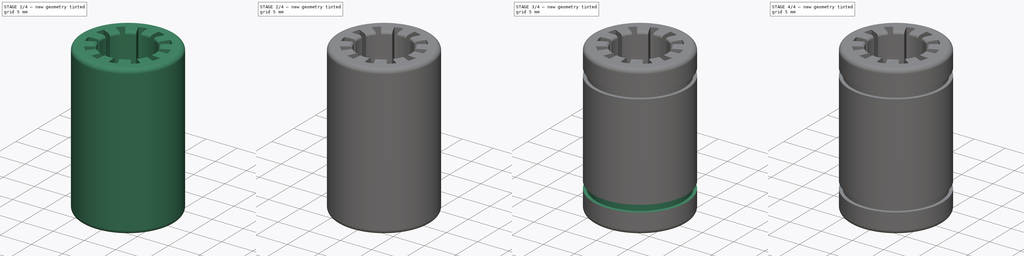
[diagram: build sequence overview — one tinted view per stage of 4, left to right]
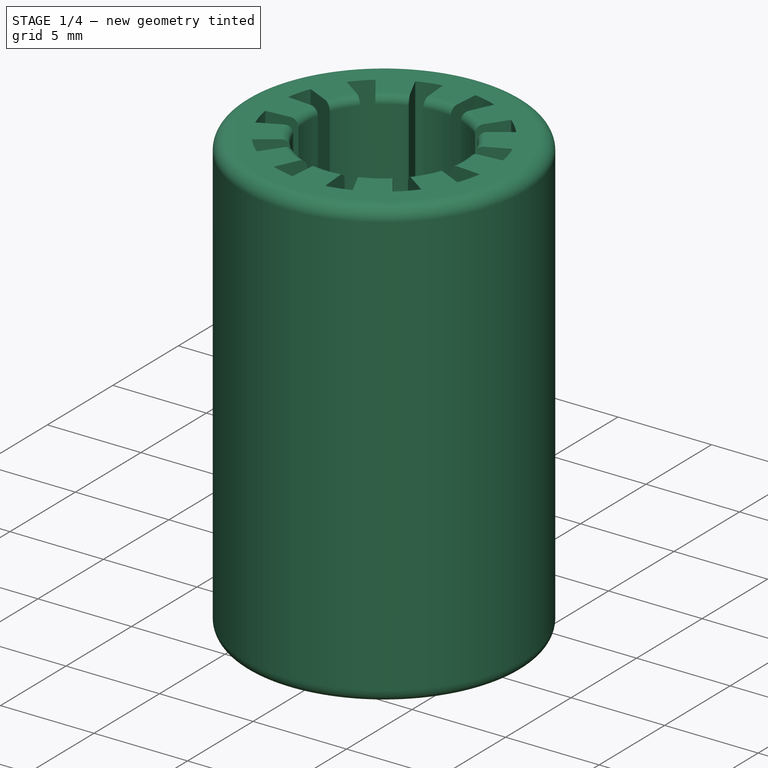
[diagram: stage 1 of 4 — iso view after this stage's code; geometry added in this stage tinted green]
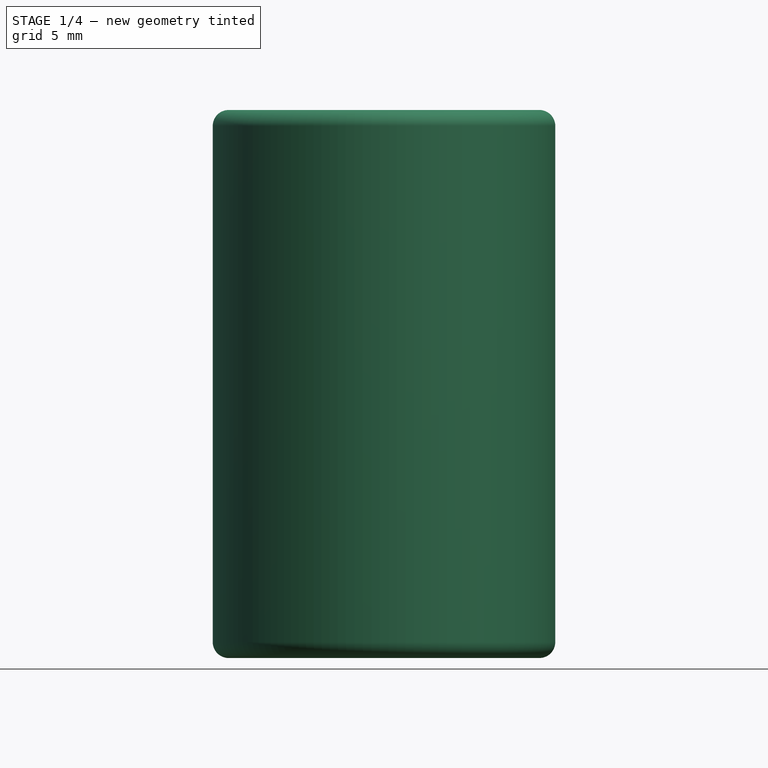
[diagram: stage 1 of 4 — front view after this stage's code; geometry added in this stage tinted green]
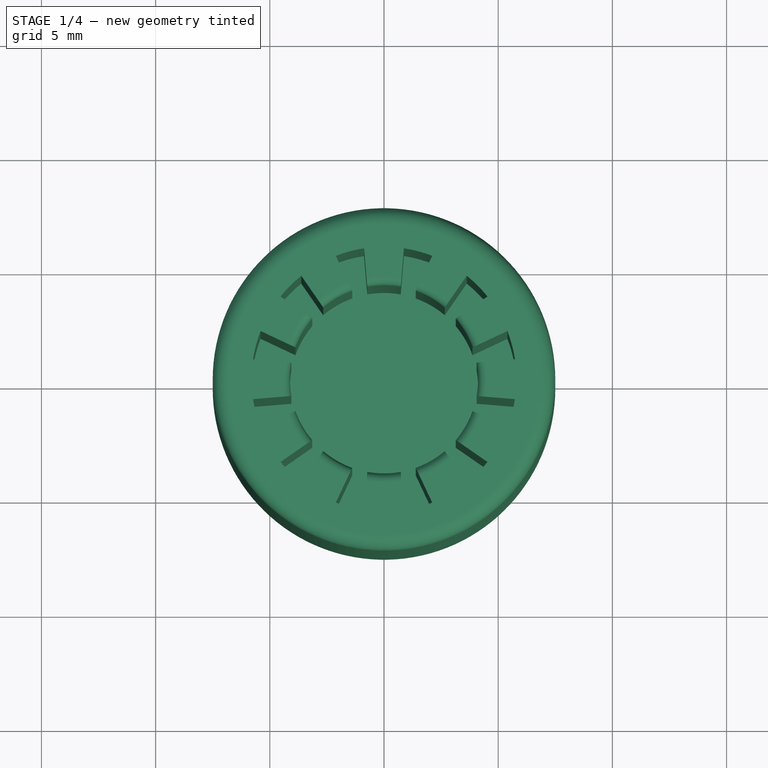
[diagram: stage 1 of 4 — top view after this stage's code; geometry added in this stage tinted green]
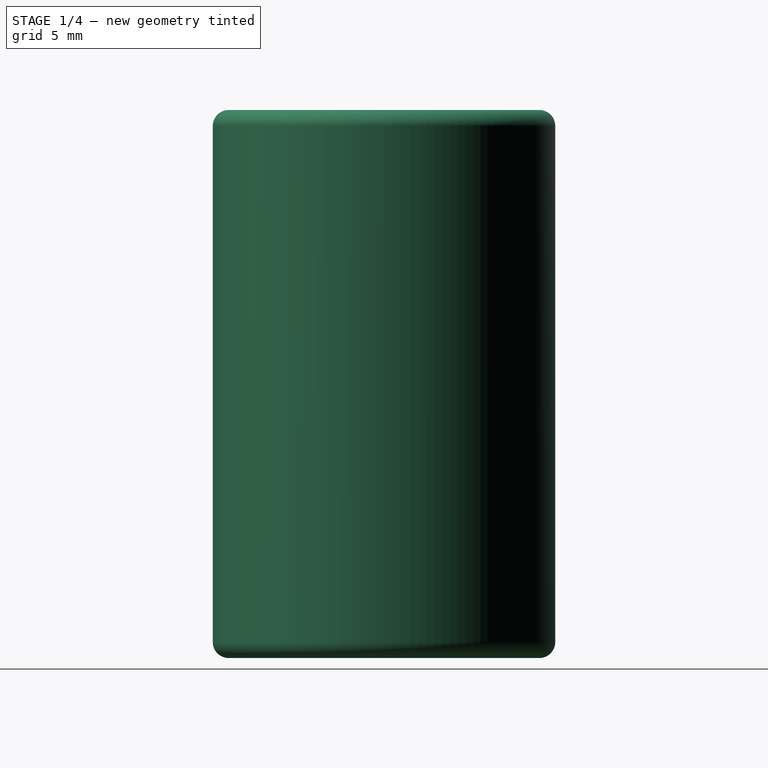
[diagram: stage 1 of 4 — right view after this stage's code; geometry added in this stage tinted green]
FCSTD DOCUMENT  (FreeCAD 0.16R6712 (Git))
Label: SleeveBearing_V2
License: All rights reserved
LicenseURL: http://en.wikipedia.org/wiki/All_rights_reserved
objects: PartDesign::Fillet×4, Part::Cut×3, Sketcher::SketchObject×2, PartDesign::Pad×2, Part::Cylinder×2, Part::FeaturePython×2, App::DocumentObjectGroup×2, Spreadsheet::Sheet×1, Part::MultiFuse×1
note: 18 computed .brp shape members not serialized (recipe doc carries the construction recipe); baked Part::Feature solids carry a one-line shape summary decoded from their .brp

FEATURE [Part::Cylinder] Cylinder001
  Angle = 360
  Height = 1.1
  Placement = pos=(0,0,3.25) rot=(0,0,1;0rad)
  Radius = 7
  expr: Placement.Base.z = Dimensions.GrooveOffset
  expr: Height = Dimensions.GrooveHeight
  expr: Radius = Dimensions.OuterRadius - Dimensions.GrooveDepth
FEATURE [Sketcher::SketchObject] Sketch001
  expr: Constraints[289] = Dimensions.ContactGrooveAngle
  expr: Constraints[288] = Dimensions.ContactGrooveAngle
  expr: Constraints[286] = Dimensions.ContactGrooveAngle
  expr: Constraints[284] = Dimensions.ContactGrooveAngle
  expr: Constraints[287] = Dimensions.ContactGrooveAngle
  expr: Constraints[285] = Dimensions.ContactGrooveAngle
  expr: Constraints[282] = Dimensions.ContactGrooveAngle
  expr: Constraints[283] = Dimensions.ContactGrooveAngle
  expr: Constraints[279] = Dimensions.ContactGrooveAngle
  expr: Constraints[278] = Dimensions.ContactGrooveAngle
  expr: Constraints[280] = Dimensions.ContactGrooveAngle
  expr: Constraints[197] = Dimensions.OuterRadius - 1.7
  expr: Constraints[77] = Dimensions.ContactAngle
  expr: Constraints[281] = Dimensions.ContactGrooveAngle
  expr: Constraints[0] = Dimensions.OuterRadius
  expr: Constraints[81] = Dimensions.InnerRadius
  sketch-geometry (109):
    g0: Circle CenterX=0 CenterY=0 CenterZ=0 NormalX=0 NormalY=0 NormalZ=1 Radius=7.5
    g1: LineSegment [constr] StartX=-1.33458 StartY=7.38031 StartZ=0 EndX=1.33458 EndY=7.38031 EndZ=0
    g2: LineSegment [constr] StartX=1.33458 StartY=7.38031 StartZ=0 EndX=2.53438 EndY=7.05882 EndZ=0
    g3: LineSegment [constr] StartX=2.53438 StartY=7.05882 StartZ=0 EndX=4.84593 EndY=5.72424 EndZ=0
    g4: LineSegment [constr] StartX=4.84593 StartY=5.72424 StartZ=0 EndX=5.72424 EndY=4.84593 EndZ=0
    g5: LineSegment [constr] StartX=5.72424 StartY=4.84593 StartZ=0 EndX=7.05882 EndY=2.53438 EndZ=0
    g6: LineSegment [constr] StartX=7.05882 StartY=2.53438 StartZ=0 EndX=7.38031 EndY=1.33458 EndZ=0
    g7: LineSegment [constr] StartX=7.38031 StartY=1.33458 StartZ=0 EndX=7.38031 EndY=-1.33458 EndZ=0
    g8: LineSegment [constr] StartX=7.38031 StartY=-1.33458 StartZ=0 EndX=7.05882 EndY=-2.53438 EndZ=0
    g9: LineSegment [constr] StartX=7.05882 StartY=-2.53438 StartZ=0 EndX=5.72424 EndY=-4.84593 EndZ=0
    g10: LineSegment [constr] StartX=5.72424 StartY=-4.84593 StartZ=0 EndX=4.84593 EndY=-5.72424 EndZ=0
    g11: LineSegment [constr] StartX=4.84593 StartY=-5.72424 StartZ=0 EndX=2.53438 EndY=-7.05882 EndZ=0
    g12: LineSegment [constr] StartX=2.53438 StartY=-7.05882 StartZ=0 EndX=1.33458 EndY=-7.38031 EndZ=0
    g13: LineSegment [constr] StartX=1.33458 StartY=-7.38031 StartZ=0 EndX=-1.33458 EndY=-7.38031 EndZ=0
    g14: LineSegment [constr] StartX=-1.33458 StartY=-7.38031 StartZ=0 EndX=-2.53438 EndY=-7.05882 EndZ=0
    g15: LineSegment [constr] StartX=-2.53438 StartY=-7.05882 StartZ=0 EndX=-4.84593 EndY=-5.72424 EndZ=0
    g16: LineSegment [constr] StartX=-4.84593 StartY=-5.72424 StartZ=0 EndX=-5.72424 EndY=-4.84593 EndZ=0
    g17: LineSegment [constr] StartX=-5.72424 StartY=-4.84593 StartZ=0 EndX=-7.05882 EndY=-2.53438 EndZ=0
    g18: LineSegment [constr] StartX=-7.05882 StartY=-2.53438 StartZ=0 EndX=-7.38031 EndY=-1.33458 EndZ=0
    g19: LineSegment [constr] StartX=-7.38031 StartY=-1.33458 StartZ=0 EndX=-7.38031 EndY=1.33458 EndZ=0
    g20: LineSegment [constr] StartX=-7.38031 StartY=1.33458 StartZ=0 EndX=-7.05882 EndY=2.53438 EndZ=0
    g21: LineSegment [constr] StartX=-7.05882 StartY=2.53438 StartZ=0 EndX=-5.72424 EndY=4.84593 EndZ=0
    g22: LineSegment [constr] StartX=-5.72424 StartY=4.84593 StartZ=0 EndX=-4.84593 EndY=5.72424 EndZ=0
    g23: LineSegment [constr] StartX=-4.84593 StartY=5.72424 StartZ=0 EndX=-2.53438 EndY=7.05882 EndZ=0
    g24: LineSegment [constr] StartX=-2.53438 StartY=7.05882 StartZ=0 EndX=-1.33458 EndY=7.38031 EndZ=0
    g25: LineSegment [constr] StartX=0 StartY=0 StartZ=0 EndX=-1.33458 EndY=7.38031 EndZ=0
    g26: LineSegment [constr] StartX=0 StartY=0 StartZ=0 EndX=1.33458 EndY=7.38031 EndZ=0
    g27: ArcOfCircle CenterX=0 CenterY=0 CenterZ=0 NormalX=0 NormalY=0 NormalZ=1 Radius=4.12 StartAngle=1.3919 EndAngle=1.74969
    g28: LineSegment [constr] StartX=0 StartY=0 StartZ=0 EndX=2.53438 EndY=7.05882 EndZ=0
    g29: LineSegment [constr] StartX=0 StartY=0 StartZ=0 EndX=4.84593 EndY=5.72424 EndZ=0
    g30: LineSegment [constr] StartX=0 StartY=0 StartZ=0 EndX=5.72424 EndY=4.84593 EndZ=0
    g31: LineSegment [constr] StartX=0 StartY=0 StartZ=0 EndX=-2.53438 EndY=7.05882 EndZ=0
    g32: LineSegment [constr] StartX=0 StartY=0 StartZ=0 EndX=-4.84593 EndY=5.72424 EndZ=0
    g33: LineSegment [constr] StartX=0 StartY=0 StartZ=0 EndX=-5.72424 EndY=4.84593 EndZ=0
    g34: LineSegment [constr] StartX=0 StartY=0 StartZ=0 EndX=-7.05882 EndY=2.53438 EndZ=0
    g35: LineSegment [constr] StartX=0 StartY=0 StartZ=0 EndX=-7.38031 EndY=1.33458 EndZ=0
    g36: LineSegment [constr] StartX=0 StartY=0 StartZ=0 EndX=7.05882 EndY=2.53438 EndZ=0
    g37: LineSegment [constr] StartX=0 StartY=0 StartZ=0 EndX=7.38031 EndY=1.33458 EndZ=0
    g38: LineSegment [constr] StartX=0 StartY=0 StartZ=0 EndX=7.38031 EndY=-1.33458 EndZ=0
    g39: LineSegment [constr] StartX=0 StartY=0 StartZ=0 EndX=-7.38031 EndY=-1.33458 EndZ=0
    g40: LineSegment [constr] StartX=0 StartY=0 StartZ=0 EndX=-7.05882 EndY=-2.53438 EndZ=0
    g41: LineSegment [constr] StartX=0 StartY=0 StartZ=0 EndX=7.05882 EndY=-2.53438 EndZ=0
    g42: LineSegment [constr] StartX=0 StartY=0 StartZ=0 EndX=5.72424 EndY=-4.84593 EndZ=0
    g43: LineSegment [constr] StartX=0 StartY=0 StartZ=0 EndX=4.84593 EndY=-5.72424 EndZ=0
    g44: LineSegment [constr] StartX=0 StartY=0 StartZ=0 EndX=-5.72424 EndY=-4.84593 EndZ=0
    g45: LineSegment [constr] StartX=0 StartY=0 StartZ=0 EndX=-4.84593 EndY=-5.72424 EndZ=0
    g46: LineSegment [constr] StartX=0 StartY=0 StartZ=0 EndX=-2.53438 EndY=-7.05882 EndZ=0
    g47: LineSegment [constr] StartX=0 StartY=0 StartZ=0 EndX=-1.33458 EndY=-7.38031 EndZ=0
    g48: LineSegment [constr] StartX=0 StartY=0 StartZ=0 EndX=1.33458 EndY=-7.38031 EndZ=0
    g49: LineSegment [constr] StartX=0 StartY=0 StartZ=0 EndX=2.53438 EndY=-7.05882 EndZ=0
    g50: ArcOfCircle CenterX=0 CenterY=0 CenterZ=0 NormalX=0 NormalY=0 NormalZ=1 Radius=4.12 StartAngle=0.868301 EndAngle=1.22609
    g51: ArcOfCircle CenterX=0 CenterY=0 CenterZ=0 NormalX=0 NormalY=0 NormalZ=1 Radius=4.12 StartAngle=0.344703 EndAngle=0.702495
    g52: ArcOfCircle CenterX=0 CenterY=0 CenterZ=0 NormalX=0 NormalY=0 NormalZ=1 Radius=4.12 StartAngle=6.10429 EndAngle=6.46208
    g53: ArcOfCircle CenterX=0 CenterY=0 CenterZ=0 NormalX=0 NormalY=0 NormalZ=1 Radius=4.12 StartAngle=5.58069 EndAngle=5.93848
    g54: ArcOfCircle CenterX=0 CenterY=0 CenterZ=0 NormalX=0 NormalY=0 NormalZ=1 Radius=4.12 StartAngle=5.05709 EndAngle=5.41488
    g55: ArcOfCircle CenterX=0 CenterY=0 CenterZ=0 NormalX=0 NormalY=0 NormalZ=1 Radius=4.12 StartAngle=4.53349 EndAngle=4.89129
    g56: ArcOfCircle CenterX=0 CenterY=0 CenterZ=0 NormalX=0 NormalY=0 NormalZ=1 Radius=4.12 StartAngle=4.00989 EndAngle=4.36769
    g57: ArcOfCircle CenterX=0 CenterY=0 CenterZ=0 NormalX=0 NormalY=0 NormalZ=1 Radius=4.12 StartAngle=3.4863 EndAngle=3.84409
    g58: ArcOfCircle CenterX=0 CenterY=0 CenterZ=0 NormalX=0 NormalY=0 NormalZ=1 Radius=4.12 StartAngle=2.9627 EndAngle=3.32049
    g59: ArcOfCircle CenterX=0 CenterY=0 CenterZ=0 NormalX=0 NormalY=0 NormalZ=1 Radius=4.12 StartAngle=2.4391 EndAngle=2.79689
    g60: ArcOfCircle CenterX=0 CenterY=0 CenterZ=0 NormalX=0 NormalY=0 NormalZ=1 Radius=4.12 StartAngle=1.9155 EndAngle=2.27329
    g61: LineSegment StartX=-1.39222 StartY=3.87765 StartZ=0 EndX=-2.1112 EndY=5.40211 EndZ=0
    g62: LineSegment StartX=-0.872701 StartY=5.73397 StartZ=0 EndX=-0.733127 EndY=4.05425 EndZ=0
    g63: LineSegment StartX=0.733127 StartY=4.05425 StartZ=0 EndX=0.872701 EndY=5.73397 EndZ=0
    g64: LineSegment StartX=2.1112 StartY=5.40211 StartZ=0 EndX=1.39222 EndY=3.87765 EndZ=0
    g65: LineSegment StartX=2.66203 StartY=3.14452 StartZ=0 EndX=3.62277 EndY=4.52941 EndZ=0
    g66: LineSegment StartX=4.52941 StartY=3.62277 StartZ=0 EndX=3.14452 EndY=2.66203 EndZ=0
    g67: LineSegment StartX=3.87765 StartY=1.39222 StartZ=0 EndX=5.40211 EndY=2.1112 EndZ=0
    g68: LineSegment StartX=5.73397 StartY=0.872701 StartZ=0 EndX=4.05425 EndY=0.733127 EndZ=0
    g69: LineSegment StartX=4.05425 StartY=-0.733127 StartZ=0 EndX=5.73397 EndY=-0.872701 EndZ=0
    g70: LineSegment StartX=5.40211 StartY=-2.1112 StartZ=0 EndX=3.87765 EndY=-1.39222 EndZ=0
    g71: LineSegment StartX=3.14452 StartY=-2.66203 StartZ=0 EndX=4.52941 EndY=-3.62277 EndZ=0
    g72: LineSegment StartX=3.62277 StartY=-4.52941 StartZ=0 EndX=2.66203 EndY=-3.14452 EndZ=0
    g73: LineSegment StartX=-2.66203 StartY=3.14452 StartZ=0 EndX=-3.62277 EndY=4.52941 EndZ=0
    g74: LineSegment StartX=-4.52941 StartY=3.62277 StartZ=0 EndX=-3.14452 EndY=2.66203 EndZ=0
    g75: LineSegment StartX=-3.87765 StartY=1.39222 StartZ=0 EndX=-5.40211 EndY=2.1112 EndZ=0
    g76: LineSegment StartX=-5.73397 StartY=0.872701 StartZ=0 EndX=-4.05425 EndY=0.733127 EndZ=0
    g77: LineSegment StartX=-4.05425 StartY=-0.733127 StartZ=0 EndX=-5.73397 EndY=-0.872701 EndZ=0
    g78: LineSegment StartX=-5.40211 StartY=-2.1112 StartZ=0 EndX=-3.87765 EndY=-1.39222 EndZ=0
    g79: LineSegment StartX=-3.14452 StartY=-2.66203 StartZ=0 EndX=-4.52941 EndY=-3.62277 EndZ=0
    g80: LineSegment StartX=-3.62277 StartY=-4.52941 StartZ=0 EndX=-2.66203 EndY=-3.14452 EndZ=0
    g81: LineSegment StartX=-1.39222 StartY=-3.87765 StartZ=0 EndX=-2.1112 EndY=-5.40211 EndZ=0
    g82: LineSegment StartX=-0.872701 StartY=-5.73397 StartZ=0 EndX=-0.733127 EndY=-4.05425 EndZ=0
    g83: LineSegment StartX=0.733127 StartY=-4.05425 StartZ=0 EndX=0.872701 EndY=-5.73397 EndZ=0
    g84: LineSegment StartX=2.1112 StartY=-5.40211 StartZ=0 EndX=1.39222 EndY=-3.87765 EndZ=0
    g85: ArcOfCircle CenterX=0 CenterY=0 CenterZ=0 NormalX=0 NormalY=0 NormalZ=1 Radius=5.8 StartAngle=1.72184 EndAngle=1.94336
    g86: ArcOfCircle CenterX=0 CenterY=0 CenterZ=0 NormalX=0 NormalY=0 NormalZ=1 Radius=5.8 StartAngle=1.19824 EndAngle=1.41976
    g87: ArcOfCircle CenterX=0 CenterY=0 CenterZ=0 NormalX=0 NormalY=0 NormalZ=1 Radius=5.8 StartAngle=0.674638 EndAngle=0.896158
    g88: ArcOfCircle CenterX=0 CenterY=0 CenterZ=0 NormalX=0 NormalY=0 NormalZ=1 Radius=5.8 StartAngle=2.24543 EndAngle=2.46695
    g89: ArcOfCircle CenterX=0 CenterY=0 CenterZ=0 NormalX=0 NormalY=0 NormalZ=1 Radius=5.8 StartAngle=2.76903 EndAngle=2.99055
    g90: ArcOfCircle CenterX=0 CenterY=0 CenterZ=0 NormalX=0 NormalY=0 NormalZ=1 Radius=5.8 StartAngle=0.151039 EndAngle=0.372559
    g91: ArcOfCircle CenterX=0 CenterY=0 CenterZ=0 NormalX=0 NormalY=0 NormalZ=1 Radius=5.8 StartAngle=3.29263 EndAngle=3.51415
    g92: ArcOfCircle CenterX=0 CenterY=0 CenterZ=0 NormalX=0 NormalY=0 NormalZ=1 Radius=5.8 StartAngle=3.81623 EndAngle=4.03775
    g93: ArcOfCircle CenterX=0 CenterY=0 CenterZ=0 NormalX=0 NormalY=0 NormalZ=1 Radius=5.8 StartAngle=4.33983 EndAngle=4.56135
    g94: ArcOfCircle CenterX=0 CenterY=0 CenterZ=0 NormalX=0 NormalY=0 NormalZ=1 Radius=5.8 StartAngle=4.86343 EndAngle=5.08495
    g95: ArcOfCircle CenterX=0 CenterY=0 CenterZ=0 NormalX=0 NormalY=0 NormalZ=1 Radius=5.8 StartAngle=5.38703 EndAngle=5.60855
    g96: ArcOfCircle CenterX=0 CenterY=0 CenterZ=0 NormalX=0 NormalY=0 NormalZ=1 Radius=5.8 StartAngle=5.91063 EndAngle=6.13215
    g97: LineSegment [constr] StartX=-0.872701 StartY=5.73397 StartZ=0 EndX=0.872701 EndY=5.73397 EndZ=0
    g98: LineSegment [constr] StartX=2.1112 StartY=5.40211 StartZ=0 EndX=3.62277 EndY=4.52941 EndZ=0
    g99: LineSegment [constr] StartX=4.52941 StartY=3.62277 StartZ=0 EndX=5.40211 EndY=2.1112 EndZ=0
    g100: LineSegment [constr] StartX=5.73397 StartY=0.872701 StartZ=0 EndX=5.73397 EndY=-0.872701 EndZ=0
    g101: LineSegment [constr] StartX=5.40211 StartY=-2.1112 StartZ=0 EndX=4.52941 EndY=-3.62277 EndZ=0
    g102: LineSegment [constr] StartX=3.62277 StartY=-4.52941 StartZ=0 EndX=2.1112 EndY=-5.40211 EndZ=0
    g103: LineSegment [constr] StartX=0.872701 StartY=-5.73397 StartZ=0 EndX=-0.872701 EndY=-5.73397 EndZ=0
    g104: LineSegment [constr] StartX=-2.1112 StartY=-5.40211 StartZ=0 EndX=-3.62277 EndY=-4.52941 EndZ=0
    g105: LineSegment [constr] StartX=-4.52941 StartY=-3.62277 StartZ=0 EndX=-5.40211 EndY=-2.1112 EndZ=0
    g106: LineSegment [constr] StartX=-5.40211 StartY=2.1112 StartZ=0 EndX=-4.52941 EndY=3.62277 EndZ=0
    g107: LineSegment [constr] StartX=-3.62277 StartY=4.52941 StartZ=0 EndX=-2.1112 EndY=5.40211 EndZ=0
    g108: LineSegment [constr] StartX=-5.73397 StartY=0.872701 StartZ=0 EndX=-5.73397 EndY=-0.872701 EndZ=0
  constraints (290):
    c: Radius(g0) = 7.5
    c: Coincident(g1,g2)
    c: Coincident(g2,g3)
    c: Coincident(g3,g4)
    c: Coincident(g4,g5)
    c: Coincident(g5,g6)
    c: Coincident(g6,g7)
    c: Coincident(g7,g8)
    c: Coincident(g8,g9)
    c: Coincident(g9,g10)
    c: Coincident(g10,g11)
    c: Coincident(g11,g12)
    c: Coincident(g12,g13)
    c: Coincident(g13,g14)
    c: Coincident(g14,g15)
    c: Coincident(g15,g16)
    c: Coincident(g16,g17)
    c: Coincident(g17,g18)
    c: Coincident(g18,g19)
    c: Coincident(g19,g20)
    c: Coincident(g20,g21)
    c: Coincident(g21,g22)
    c: Coincident(g22,g23)
    c: Coincident(g23,g24)
    c: Coincident(g24,g1)
    c: PointOnObject(g4,g0)
    c: PointOnObject(g5,g0)
    c: PointOnObject(g6,g0)
    c: PointOnObject(g7,g0)
    c: PointOnObject(g8,g0)
    c: PointOnObject(g9,g0)
    c: PointOnObject(g10,g0)
    c: Coincident(g0,g-1)
    c: PointOnObject(g11,g0)
    c: PointOnObject(g12,g0)
    c: PointOnObject(g1,g0)
    c: PointOnObject(g1,g0)
    c: PointOnObject(g23,g0)
    c: PointOnObject(g22,g0)
    c: PointOnObject(g21,g0)
    c: PointOnObject(g20,g0)
    c: PointOnObject(g19,g0)
    c: PointOnObject(g2,g0)
    c: PointOnObject(g3,g0)
    c: PointOnObject(g18,g0)
    c: PointOnObject(g17,g0)
    c: PointOnObject(g16,g0)
    c: PointOnObject(g14,g0)
    c: PointOnObject(g13,g0)
    c: PointOnObject(g15,g0)
    c: Horizontal(g1)
    c: Equal(g1,g3)
    c: Equal(g3,g5)
    c: Equal(g5,g7)
    c: Equal(g7,g9)
    c: Equal(g9,g11)
    c: Equal(g11,g13)
    c: Equal(g13,g15)
    c: Equal(g15,g17)
    c: Equal(g17,g19)
    c: Equal(g19,g21)
    c: Equal(g21,g23)
    c: Equal(g2,g4)
    c: Equal(g4,g6)
    c: Equal(g6,g8)
    c: Equal(g8,g10)
    c: Equal(g10,g12)
    c: Equal(g12,g14)
    c: Equal(g14,g16)
    c: Equal(g16,g18)
    c: Equal(g18,g20)
    c: Equal(g20,g22)
    c: Equal(g22,g24)
    c: Coincident(g25,g-1)
    c: Coincident(g25,g1)
    c: Coincident(g26,g-1)
    c: Coincident(g26,g1)
    c: Angle(g26,g25) = 0.357792
    c: Coincident(g27,g-1)
    c: PointOnObject(g27,g25)
    c: PointOnObject(g27,g26)
    c: Radius(g27) = 4.12
    c: Coincident(g28,g-1)
    c: Coincident(g28,g2)
    c: Coincident(g29,g-1)
    c: Coincident(g29,g3)
    c: Coincident(g30,g-1)
    c: Coincident(g30,g4)
    c: Coincident(g31,g-1)
    c: Coincident(g31,g23)
    c: Coincident(g32,g-1)
    c: Coincident(g32,g22)
    c: Coincident(g33,g-1)
    c: Coincident(g33,g21)
    c: Coincident(g34,g-1)
    c: Coincident(g34,g20)
    c: Coincident(g35,g-1)
    c: Coincident(g35,g19)
    c: Coincident(g36,g-1)
    c: Coincident(g36,g5)
    c: Coincident(g37,g-1)
    c: Coincident(g37,g6)
    c: Coincident(g38,g-1)
    c: Coincident(g38,g7)
    c: Coincident(g39,g-1)
    c: Coincident(g39,g18)
    c: Coincident(g40,g-1)
    c: Coincident(g40,g17)
    c: Coincident(g41,g-1)
    c: Coincident(g41,g8)
    c: Coincident(g42,g-1)
    c: Coincident(g42,g9)
    c: Coincident(g43,g-1)
    c: Coincident(g43,g10)
    c: Coincident(g44,g-1)
    c: Coincident(g44,g16)
    c: Coincident(g45,g-1)
    c: Coincident(g45,g15)
    c: Coincident(g46,g-1)
    c: Coincident(g46,g14)
    c: Coincident(g47,g-1)
    c: Coincident(g47,g13)
    c: Coincident(g48,g-1)
    c: Coincident(g48,g12)
    c: Coincident(g49,g-1)
    c: Coincident(g49,g11)
    c: Coincident(g50,g-1)
    c: PointOnObject(g50,g28)
    c: PointOnObject(g50,g29)
    c: Coincident(g51,g-1)
    c: PointOnObject(g51,g30)
    c: PointOnObject(g51,g36)
    c: Coincident(g52,g-1)
    c: PointOnObject(g52,g37)
    c: PointOnObject(g52,g38)
    c: Coincident(g53,g-1)
    c: PointOnObject(g53,g41)
    c: PointOnObject(g53,g42)
    c: Coincident(g54,g-1)
    c: PointOnObject(g54,g43)
    c: PointOnObject(g54,g49)
    c: Coincident(g55,g-1)
    c: PointOnObject(g55,g48)
    c: PointOnObject(g55,g47)
    c: Coincident(g56,g-1)
    c: PointOnObject(g56,g46)
    c: PointOnObject(g56,g45)
    c: Coincident(g57,g-1)
    c: PointOnObject(g57,g44)
    c: PointOnObject(g57,g40)
    c: Coincident(g58,g-1)
    c: PointOnObject(g58,g39)
    c: PointOnObject(g58,g35)
    c: Coincident(g59,g-1)
    c: PointOnObject(g59,g34)
    c: PointOnObject(g59,g33)
    c: Coincident(g60,g-1)
    c: PointOnObject(g60,g32)
    c: PointOnObject(g60,g31)
    c: Equal(g50,g51)
    c: Equal(g51,g52)
    c: Equal(g52,g53)
    c: Equal(g53,g54)
    c: Equal(g54,g55)
    c: Equal(g55,g56)
    c: Equal(g56,g57)
    c: Equal(g57,g58)
    c: Equal(g58,g59)
    c: Equal(g59,g60)
    c: Equal(g27,g50)
    c: Coincident(g60,g61)
    c: Coincident(g62,g27)
    c: Coincident(g64,g50)
    c: Coincident(g27,g63)
    c: Coincident(g50,g65)
    c: Coincident(g66,g51)
    c: Coincident(g51,g67)
    c: Coincident(g68,g52)
    c: Coincident(g52,g69)
    c: Coincident(g70,g53)
    c: Coincident(g53,g71)
    c: Coincident(g72,g54)
    c: Coincident(g60,g73)
    c: Coincident(g74,g59)
    c: Coincident(g59,g75)
    c: Coincident(g76,g58)
    c: Coincident(g58,g77)
    c: Coincident(g78,g57)
    c: Coincident(g57,g79)
    c: Coincident(g80,g56)
    c: Coincident(g56,g81)
    c: Coincident(g82,g55)
    c: Coincident(g55,g83)
    c: Coincident(g84,g54)
    c: Coincident(g85,g-1)
    c: Coincident(g85,g61)
    c: Coincident(g85,g62)
    c: Radius(g85) = 5.8
    c: Coincident(g86,g-1)
    c: Coincident(g86,g63)
    c: Coincident(g86,g64)
    c: Coincident(g87,g-1)
    c: Coincident(g87,g65)
    c: Coincident(g87,g66)
    c: Coincident(g88,g-1)
    c: Coincident(g88,g73)
    c: Coincident(g88,g74)
    c: Coincident(g89,g-1)
    c: Coincident(g89,g75)
    c: Coincident(g89,g76)
    c: Coincident(g90,g-1)
    c: Coincident(g90,g67)
    c: Coincident(g90,g68)
    c: Coincident(g91,g-1)
    c: Coincident(g91,g77)
    c: Coincident(g91,g78)
    c: Coincident(g92,g-1)
    c: Coincident(g92,g79)
    c: Coincident(g92,g80)
    c: Coincident(g93,g-1)
    c: Coincident(g93,g81)
    c: Coincident(g93,g82)
    c: Coincident(g94,g-1)
    c: Coincident(g94,g83)
    c: Coincident(g94,g84)
    c: Coincident(g95,g-1)
    c: Coincident(g95,g72)
    c: Coincident(g95,g71)
    c: Coincident(g96,g-1)
    c: Coincident(g96,g70)
    c: Coincident(g96,g69)
    c: Equal(g85,g86)
    c: Equal(g86,g87)
    c: Equal(g87,g90)
    c: Equal(g90,g96)
    c: Equal(g96,g95)
    c: Equal(g95,g94)
    c: Equal(g94,g93)
    c: Equal(g93,g92)
    c: Equal(g92,g91)
    c: Equal(g91,g89)
    c: Equal(g89,g88)
    c: Coincident(g97,g62)
    c: Coincident(g97,g63)
    c: Coincident(g98,g64)
    c: Coincident(g98,g65)
    c: Coincident(g99,g66)
    c: Coincident(g99,g67)
    c: Coincident(g100,g68)
    c: Coincident(g100,g69)
    c: Coincident(g101,g70)
    c: Coincident(g101,g71)
    c: Coincident(g102,g72)
    c: Coincident(g102,g84)
    c: Coincident(g103,g83)
    c: Coincident(g103,g82)
    c: Coincident(g104,g81)
    c: Coincident(g104,g80)
    c: Coincident(g105,g79)
    c: Coincident(g105,g78)
    c: Coincident(g106,g75)
    c: Coincident(g106,g74)
    c: Coincident(g107,g73)
    c: Coincident(g107,g61)
    c: Coincident(g108,g76)
    c: Coincident(g108,g77)
    c: Equal(g106,g107)
    c: Equal(g107,g97)
    c: Equal(g97,g98)
    c: Equal(g98,g99)
    c: Equal(g99,g100)
    c: Equal(g100,g101)
    c: Equal(g101,g102)
    c: Equal(g102,g103)
    c: Equal(g103,g104)
    c: Equal(g104,g105)
    c: Equal(g105,g108)
    c: Symmetric(g62,g63,g-2)
    c: Angle(g62,g61) = 0.357792
    c: Angle(g64,g63) = 0.357792
    c: Angle(g66,g65) = 0.357792
    c: Angle(g68,g67) = 0.357792
    c: Angle(g70,g69) = 0.357792
    c: Angle(g72,g71) = 0.357792
    c: Angle(g83,g84) = 0.357792
    c: Angle(g81,g82) = 0.357792
    c: Angle(g79,g80) = 0.357792
    c: Angle(g77,g78) = 0.357792
    c: Angle(g75,g76) = 0.357792
    c: Angle(g73,g74) = 0.357792
FEATURE [PartDesign::Pad] Pad001
  Length = 24
  Length2 = 100
  Sketch = -> Sketch001
  Type = 0
  expr: Length = Dimensions.Height
FEATURE [App::DocumentObjectGroup] Group  label="V2"
  Group = -> [Pad,Fillet,Cut001]
FEATURE [PartDesign::Fillet] Fillet002
  Base = -> Pad001 [Edge25,Edge13,Edge145,Edge133,Edge121,Edge109,Edge97,Edge85,Edge73,Edge61,Edge49,Edge37,Edge60,Edge72,Edge84,Edge96,Edge108,Edge120,Edge132,Edge144,Edge12,Edge24,Edge36,Edge48]
  Radius = 0.4
FEATURE [PartDesign::Fillet] Fillet003
  Base = -> Fillet002 [Edge60,Edge107]
  Radius = 0.7
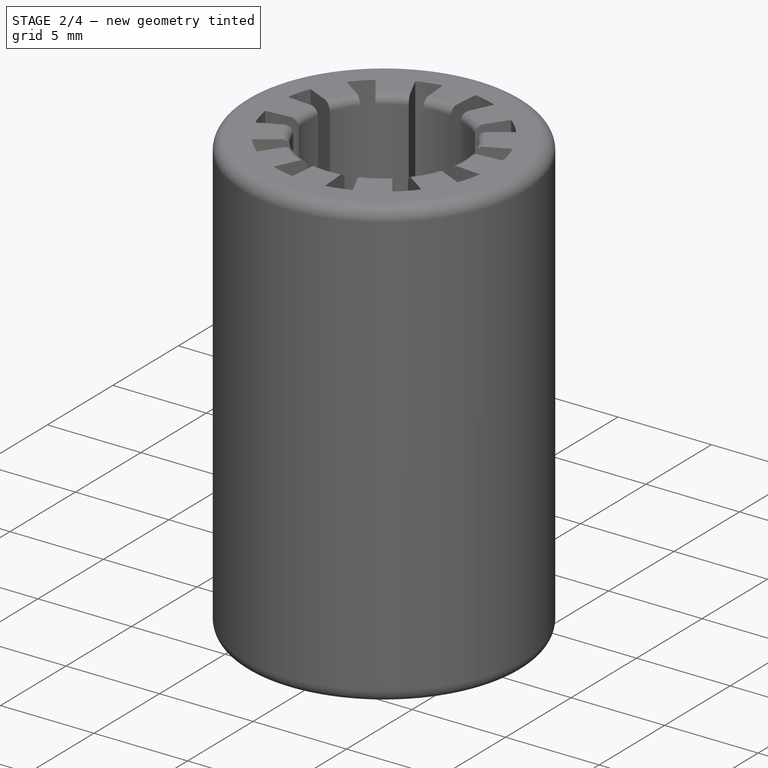
[diagram: stage 2 of 4 — iso view after this stage's code; geometry added in this stage tinted green]
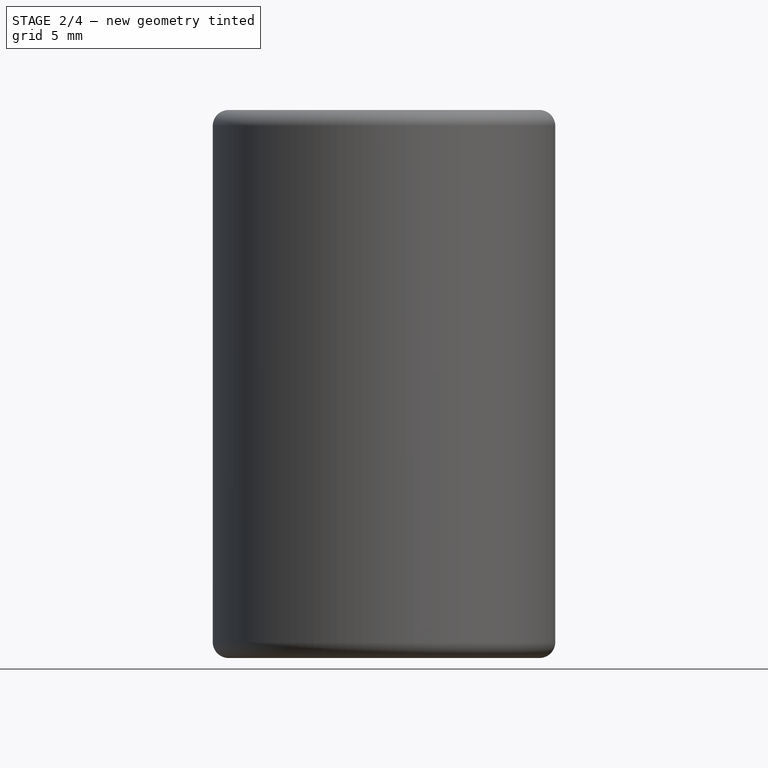
[diagram: stage 2 of 4 — front view after this stage's code; geometry added in this stage tinted green]
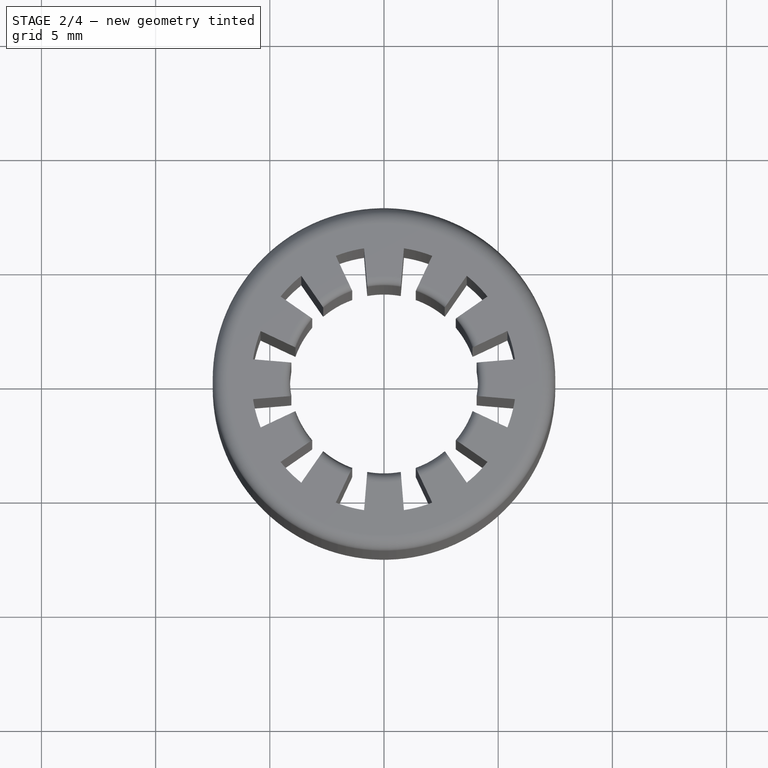
[diagram: stage 2 of 4 — top view after this stage's code; geometry added in this stage tinted green]
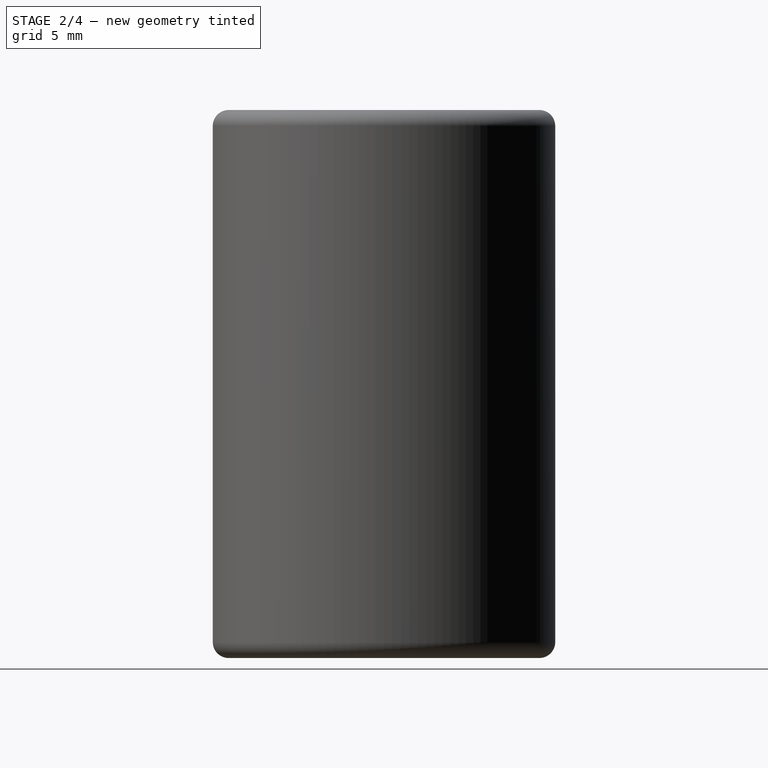
[diagram: stage 2 of 4 — right view after this stage's code; geometry added in this stage tinted green]
FEATURE [Part::Cylinder] Cylinder
  Angle = 360
  Height = 1.1
  Placement = pos=(0,0,3.25) rot=(0,0,1;0rad)
  Radius = 7.5
  expr: Placement.Base.z = Dimensions.GrooveOffset
  expr: Height = Dimensions.GrooveHeight
  expr: Radius = Dimensions.OuterRadius
FEATURE [Part::Cut] Cut
  Base = -> Cylinder
  Tool = -> Cylinder001
FEATURE [Part::FeaturePython] Clone  label="Clone of Cut"  # Draft clone (typed FeaturePython)
  Objects = -> [Cut]
  Placement = pos=(0,0,16.4) rot=(0,0,1;0rad)
  Scale = (1,1,1)
  expr: Placement.Base.z = Dimensions.Height - Dimensions.GrooveOffset * 2 - Dimensions.GrooveHeight
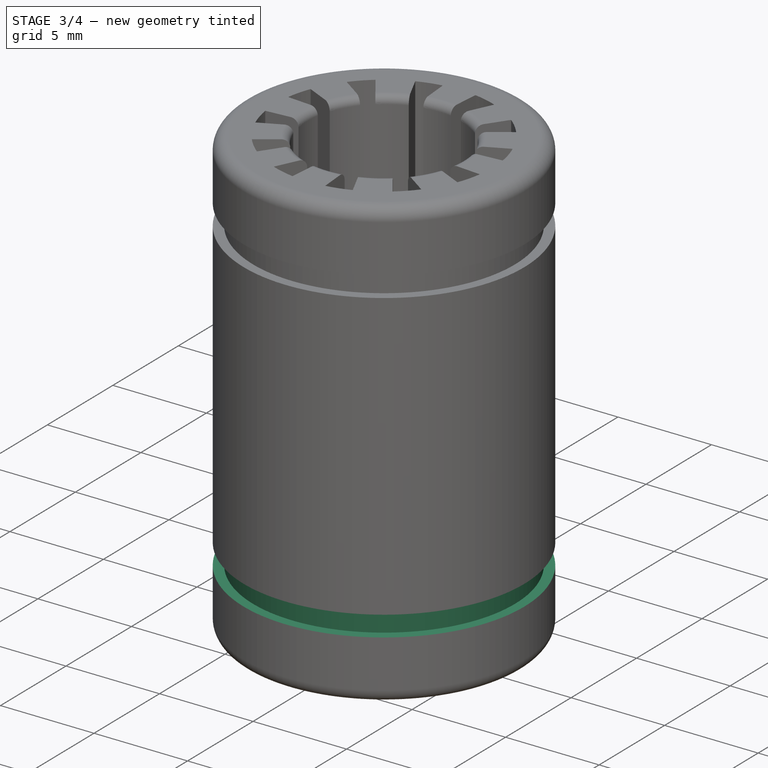
[diagram: stage 3 of 4 — iso view after this stage's code; geometry added in this stage tinted green]
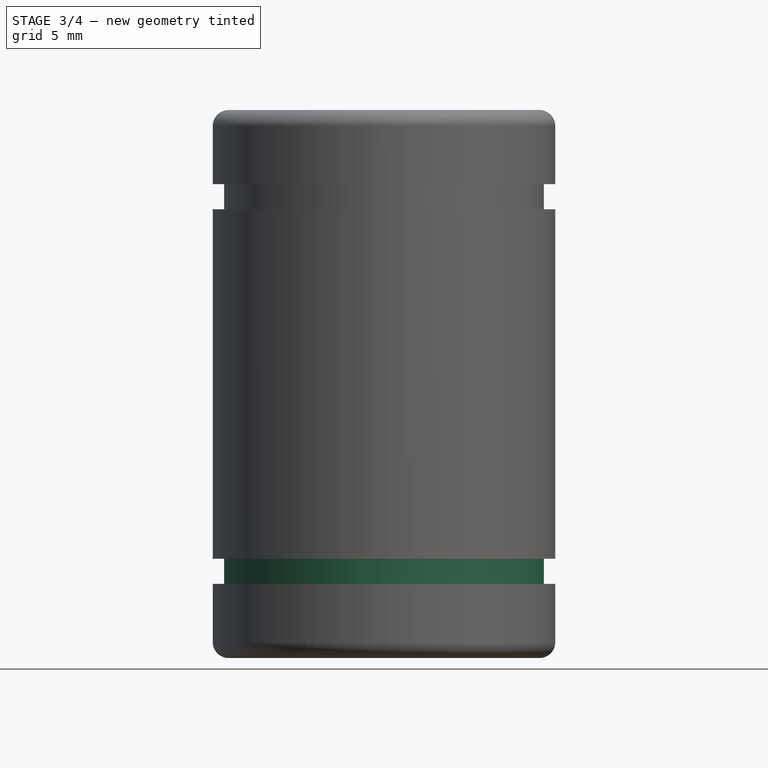
[diagram: stage 3 of 4 — front view after this stage's code; geometry added in this stage tinted green]
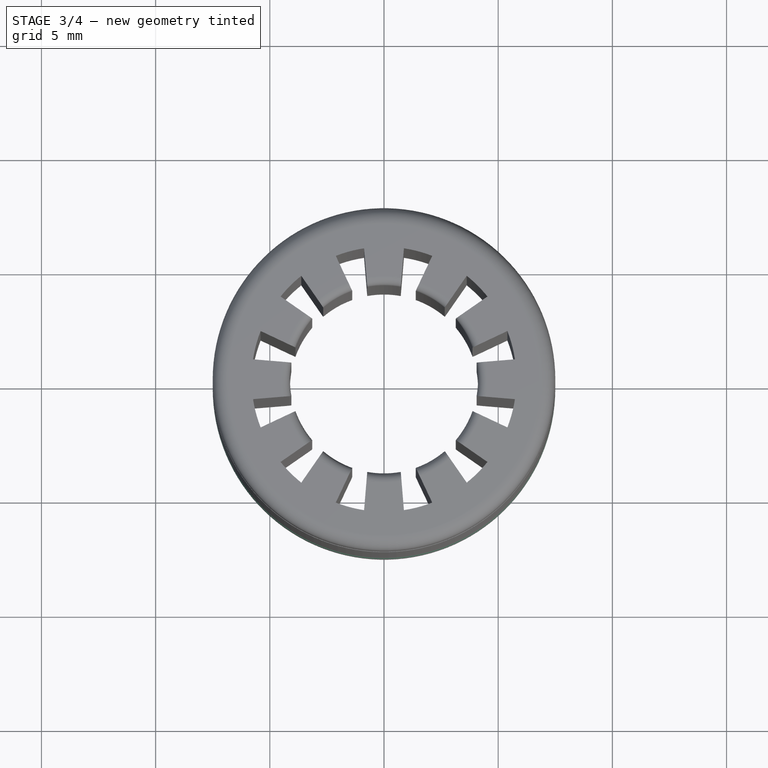
[diagram: stage 3 of 4 — top view after this stage's code; geometry added in this stage tinted green]
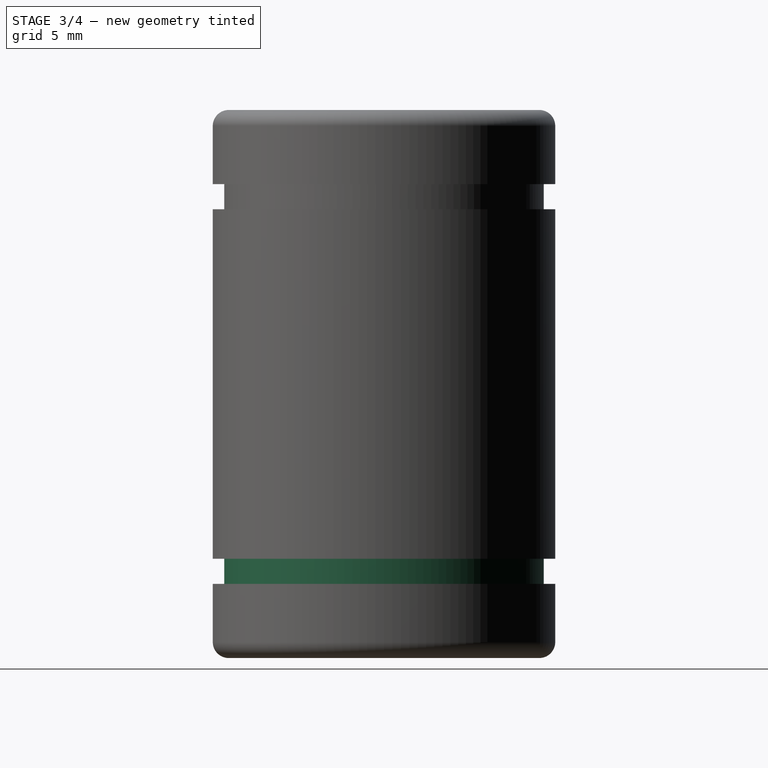
[diagram: stage 3 of 4 — right view after this stage's code; geometry added in this stage tinted green]
FEATURE [Part::MultiFuse] Fusion
  Shapes = -> [Cut,Clone]
FEATURE [Part::FeaturePython] Clone001  label="Clone of Fusion"  # Draft clone (typed FeaturePython)
  Objects = -> [Fusion]
  Scale = (1,1,1)
FEATURE [Part::Cut] Cut002
  Base = -> Fillet003
  Tool = -> Clone001
FEATURE [App::DocumentObjectGroup] Group001  label="V3"
  Group = -> [Pad001,Fillet002,Cut002]
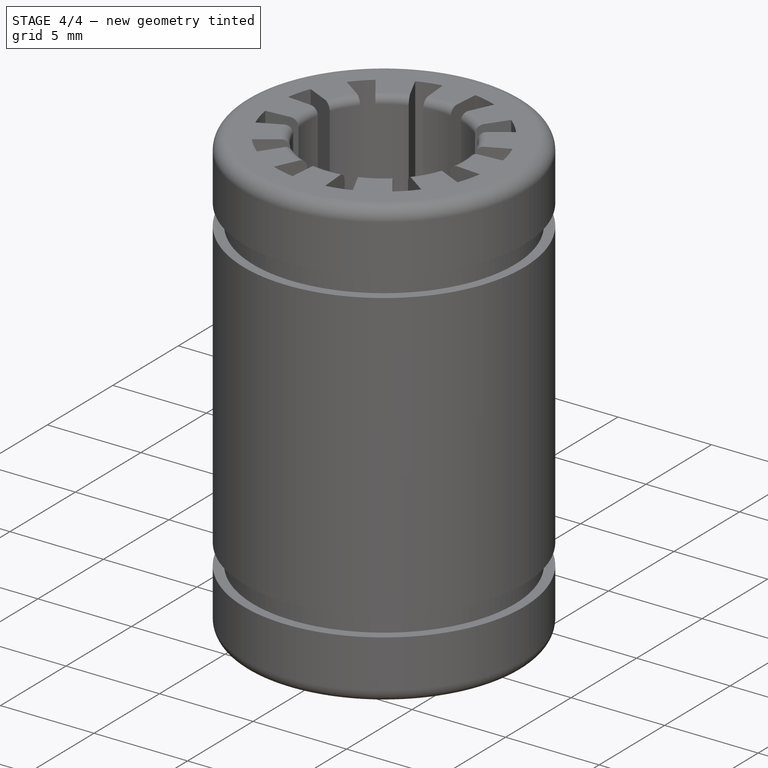
[diagram: stage 4 of 4 — iso view after this stage's code; geometry added in this stage tinted green]
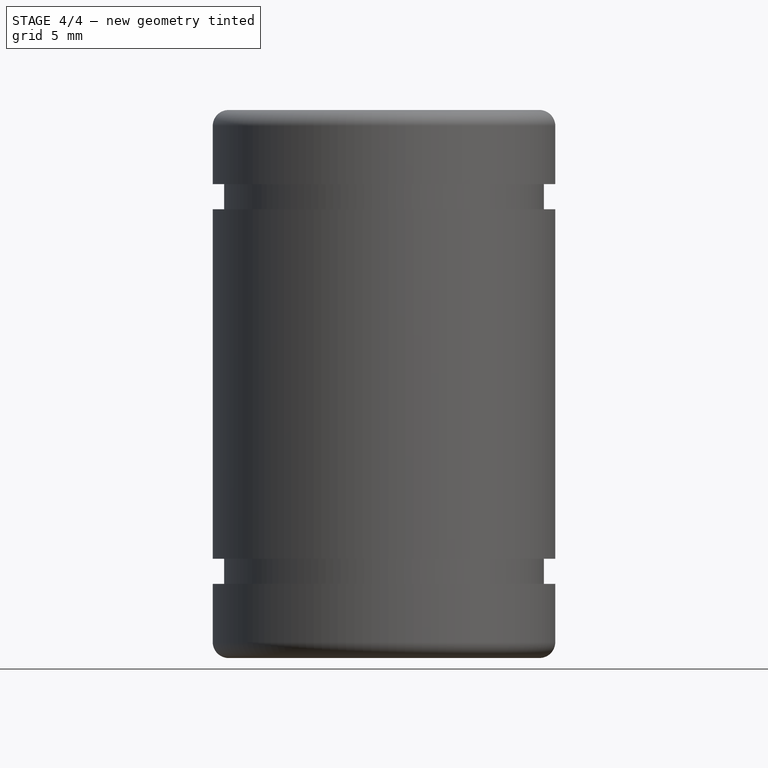
[diagram: stage 4 of 4 — front view after this stage's code; geometry added in this stage tinted green]
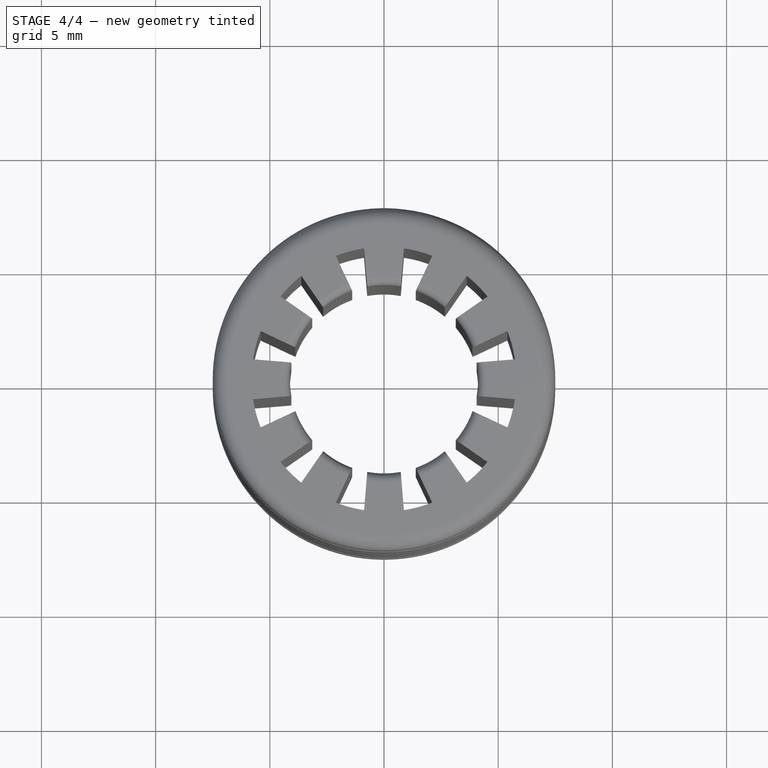
[diagram: stage 4 of 4 — top view after this stage's code; geometry added in this stage tinted green]
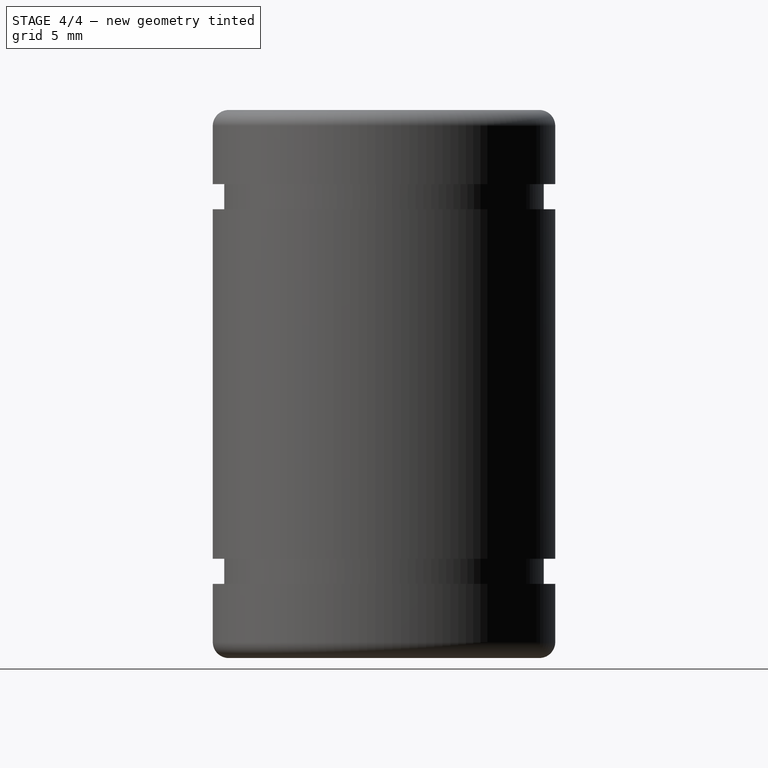
[diagram: stage 4 of 4 — right view after this stage's code; geometry added in this stage tinted green]
FEATURE [Sketcher::SketchObject] Sketch
  expr: Constraints[197] = Dimensions.OuterRadius - 1.7
  expr: Constraints[77] = Dimensions.ContactAngle
  expr: Constraints[0] = Dimensions.OuterRadius
  expr: Constraints[81] = Dimensions.InnerRadius
  sketch-geometry (109):
    g0: Circle CenterX=0 CenterY=0 CenterZ=0 NormalX=0 NormalY=0 NormalZ=1 Radius=7.5
    g1: LineSegment [constr] StartX=-1.33458 StartY=7.38031 StartZ=0 EndX=1.33458 EndY=7.38031 EndZ=0
    g2: LineSegment [constr] StartX=1.33458 StartY=7.38031 StartZ=0 EndX=2.53438 EndY=7.05882 EndZ=0
    g3: LineSegment [constr] StartX=2.53438 StartY=7.05882 StartZ=0 EndX=4.84593 EndY=5.72424 EndZ=0
    g4: LineSegment [constr] StartX=4.84593 StartY=5.72424 StartZ=0 EndX=5.72424 EndY=4.84593 EndZ=0
    g5: LineSegment [constr] StartX=5.72424 StartY=4.84593 StartZ=0 EndX=7.05882 EndY=2.53438 EndZ=0
    g6: LineSegment [constr] StartX=7.05882 StartY=2.53438 StartZ=0 EndX=7.38031 EndY=1.33458 EndZ=0
    g7: LineSegment [constr] StartX=7.38031 StartY=1.33458 StartZ=0 EndX=7.38031 EndY=-1.33458 EndZ=0
    g8: LineSegment [constr] StartX=7.38031 StartY=-1.33458 StartZ=0 EndX=7.05882 EndY=-2.53438 EndZ=0
    g9: LineSegment [constr] StartX=7.05882 StartY=-2.53438 StartZ=0 EndX=5.72424 EndY=-4.84593 EndZ=0
    g10: LineSegment [constr] StartX=5.72424 StartY=-4.84593 StartZ=0 EndX=4.84593 EndY=-5.72424 EndZ=0
    g11: LineSegment [constr] StartX=4.84593 StartY=-5.72424 StartZ=0 EndX=2.53438 EndY=-7.05882 EndZ=0
    g12: LineSegment [constr] StartX=2.53438 StartY=-7.05882 StartZ=0 EndX=1.33458 EndY=-7.38031 EndZ=0
    g13: LineSegment [constr] StartX=1.33458 StartY=-7.38031 StartZ=0 EndX=-1.33458 EndY=-7.38031 EndZ=0
    g14: LineSegment [constr] StartX=-1.33458 StartY=-7.38031 StartZ=0 EndX=-2.53438 EndY=-7.05882 EndZ=0
    g15: LineSegment [constr] StartX=-2.53438 StartY=-7.05882 StartZ=0 EndX=-4.84593 EndY=-5.72424 EndZ=0
    g16: LineSegment [constr] StartX=-4.84593 StartY=-5.72424 StartZ=0 EndX=-5.72424 EndY=-4.84593 EndZ=0
    g17: LineSegment [constr] StartX=-5.72424 StartY=-4.84593 StartZ=0 EndX=-7.05882 EndY=-2.53438 EndZ=0
    g18: LineSegment [constr] StartX=-7.05882 StartY=-2.53438 StartZ=0 EndX=-7.38031 EndY=-1.33458 EndZ=0
    g19: LineSegment [constr] StartX=-7.38031 StartY=-1.33458 StartZ=0 EndX=-7.38031 EndY=1.33458 EndZ=0
    g20: LineSegment [constr] StartX=-7.38031 StartY=1.33458 StartZ=0 EndX=-7.05882 EndY=2.53438 EndZ=0
    g21: LineSegment [constr] StartX=-7.05882 StartY=2.53438 StartZ=0 EndX=-5.72424 EndY=4.84593 EndZ=0
    g22: LineSegment [constr] StartX=-5.72424 StartY=4.84593 StartZ=0 EndX=-4.84593 EndY=5.72424 EndZ=0
    g23: LineSegment [constr] StartX=-4.84593 StartY=5.72424 StartZ=0 EndX=-2.53438 EndY=7.05882 EndZ=0
    g24: LineSegment [constr] StartX=-2.53438 StartY=7.05882 StartZ=0 EndX=-1.33458 EndY=7.38031 EndZ=0
    g25: LineSegment [constr] StartX=0 StartY=0 StartZ=0 EndX=-1.33458 EndY=7.38031 EndZ=0
    g26: LineSegment [constr] StartX=0 StartY=0 StartZ=0 EndX=1.33458 EndY=7.38031 EndZ=0
    g27: ArcOfCircle CenterX=0 CenterY=0 CenterZ=0 NormalX=0 NormalY=0 NormalZ=1 Radius=4.12 StartAngle=1.3919 EndAngle=1.74969
    g28: LineSegment [constr] StartX=0 StartY=0 StartZ=0 EndX=2.53438 EndY=7.05882 EndZ=0
    g29: LineSegment [constr] StartX=0 StartY=0 StartZ=0 EndX=4.84593 EndY=5.72424 EndZ=0
    g30: LineSegment [constr] StartX=0 StartY=0 StartZ=0 EndX=5.72424 EndY=4.84593 EndZ=0
    g31: LineSegment [constr] StartX=0 StartY=0 StartZ=0 EndX=-2.53438 EndY=7.05882 EndZ=0
    g32: LineSegment [constr] StartX=0 StartY=0 StartZ=0 EndX=-4.84593 EndY=5.72424 EndZ=0
    g33: LineSegment [constr] StartX=0 StartY=0 StartZ=0 EndX=-5.72424 EndY=4.84593 EndZ=0
    g34: LineSegment [constr] StartX=0 StartY=0 StartZ=0 EndX=-7.05882 EndY=2.53438 EndZ=0
    g35: LineSegment [constr] StartX=0 StartY=0 StartZ=0 EndX=-7.38031 EndY=1.33458 EndZ=0
    g36: LineSegment [constr] StartX=0 StartY=0 StartZ=0 EndX=7.05882 EndY=2.53438 EndZ=0
    g37: LineSegment [constr] StartX=0 StartY=0 StartZ=0 EndX=7.38031 EndY=1.33458 EndZ=0
    g38: LineSegment [constr] StartX=0 StartY=0 StartZ=0 EndX=7.38031 EndY=-1.33458 EndZ=0
    g39: LineSegment [constr] StartX=0 StartY=0 StartZ=0 EndX=-7.38031 EndY=-1.33458 EndZ=0
    g40: LineSegment [constr] StartX=0 StartY=0 StartZ=0 EndX=-7.05882 EndY=-2.53438 EndZ=0
    g41: LineSegment [constr] StartX=0 StartY=0 StartZ=0 EndX=7.05882 EndY=-2.53438 EndZ=0
    g42: LineSegment [constr] StartX=0 StartY=0 StartZ=0 EndX=5.72424 EndY=-4.84593 EndZ=0
    g43: LineSegment [constr] StartX=0 StartY=0 StartZ=0 EndX=4.84593 EndY=-5.72424 EndZ=0
    g44: LineSegment [constr] StartX=0 StartY=0 StartZ=0 EndX=-5.72424 EndY=-4.84593 EndZ=0
    g45: LineSegment [constr] StartX=0 StartY=0 StartZ=0 EndX=-4.84593 EndY=-5.72424 EndZ=0
    g46: LineSegment [constr] StartX=0 StartY=0 StartZ=0 EndX=-2.53438 EndY=-7.05882 EndZ=0
    g47: LineSegment [constr] StartX=0 StartY=0 StartZ=0 EndX=-1.33458 EndY=-7.38031 EndZ=0
    g48: LineSegment [constr] StartX=0 StartY=0 StartZ=0 EndX=1.33458 EndY=-7.38031 EndZ=0
    g49: LineSegment [constr] StartX=0 StartY=0 StartZ=0 EndX=2.53438 EndY=-7.05882 EndZ=0
    g50: ArcOfCircle CenterX=0 CenterY=0 CenterZ=0 NormalX=0 NormalY=0 NormalZ=1 Radius=4.12 StartAngle=0.868301 EndAngle=1.22609
    g51: ArcOfCircle CenterX=0 CenterY=0 CenterZ=0 NormalX=0 NormalY=0 NormalZ=1 Radius=4.12 StartAngle=0.344703 EndAngle=0.702495
    g52: ArcOfCircle CenterX=0 CenterY=0 CenterZ=0 NormalX=0 NormalY=0 NormalZ=1 Radius=4.12 StartAngle=6.10429 EndAngle=6.46208
    g53: ArcOfCircle CenterX=0 CenterY=0 CenterZ=0 NormalX=0 NormalY=0 NormalZ=1 Radius=4.12 StartAngle=5.58069 EndAngle=5.93848
    g54: ArcOfCircle CenterX=0 CenterY=0 CenterZ=0 NormalX=0 NormalY=0 NormalZ=1 Radius=4.12 StartAngle=5.05709 EndAngle=5.41488
    g55: ArcOfCircle CenterX=0 CenterY=0 CenterZ=0 NormalX=0 NormalY=0 NormalZ=1 Radius=4.12 StartAngle=4.53349 EndAngle=4.89129
    g56: ArcOfCircle CenterX=0 CenterY=0 CenterZ=0 NormalX=0 NormalY=0 NormalZ=1 Radius=4.12 StartAngle=4.00989 EndAngle=4.36769
    g57: ArcOfCircle CenterX=0 CenterY=0 CenterZ=0 NormalX=0 NormalY=0 NormalZ=1 Radius=4.12 StartAngle=3.4863 EndAngle=3.84409
    g58: ArcOfCircle CenterX=0 CenterY=0 CenterZ=0 NormalX=0 NormalY=0 NormalZ=1 Radius=4.12 StartAngle=2.9627 EndAngle=3.32049
    g59: ArcOfCircle CenterX=0 CenterY=0 CenterZ=0 NormalX=0 NormalY=0 NormalZ=1 Radius=4.12 StartAngle=2.4391 EndAngle=2.79689
    g60: ArcOfCircle CenterX=0 CenterY=0 CenterZ=0 NormalX=0 NormalY=0 NormalZ=1 Radius=4.12 StartAngle=1.9155 EndAngle=2.27329
    g61: LineSegment StartX=-1.39222 StartY=3.87765 StartZ=0 EndX=-2.24184 EndY=5.34922 EndZ=0
    g62: LineSegment StartX=-0.733127 StartY=5.75348 StartZ=0 EndX=-0.733127 EndY=4.05425 EndZ=0
    g63: LineSegment StartX=0.733127 StartY=4.05425 StartZ=0 EndX=0.733127 EndY=5.75348 EndZ=0
    g64: LineSegment StartX=2.24183 StartY=5.34922 StartZ=0 EndX=1.39222 EndY=3.87765 EndZ=0
    g65: LineSegment StartX=2.66203 StartY=3.14452 StartZ=0 EndX=3.51165 EndY=4.6161 EndZ=0
    g66: LineSegment StartX=4.61609 StartY=3.51165 StartZ=0 EndX=3.14452 EndY=2.66203 EndZ=0
    g67: LineSegment StartX=3.87765 StartY=1.39222 StartZ=0 EndX=5.34922 EndY=2.24183 EndZ=0
    g68: LineSegment StartX=5.75348 StartY=0.733159 StartZ=0 EndX=4.05425 EndY=0.733127 EndZ=0
    g69: LineSegment StartX=4.05425 StartY=-0.733127 StartZ=0 EndX=5.75348 EndY=-0.733096 EndZ=0
    g70: LineSegment StartX=5.34922 StartY=-2.24183 StartZ=0 EndX=3.87765 EndY=-1.39222 EndZ=0
    g71: LineSegment StartX=3.14452 StartY=-2.66203 StartZ=0 EndX=4.6161 EndY=-3.51165 EndZ=0
    g72: LineSegment StartX=3.51164 StartY=-4.6161 StartZ=0 EndX=2.66203 EndY=-3.14452 EndZ=0
    g73: LineSegment StartX=-2.66203 StartY=3.14452 StartZ=0 EndX=-3.51165 EndY=4.61609 EndZ=0
    g74: LineSegment StartX=-4.6161 StartY=3.51164 StartZ=0 EndX=-3.14452 EndY=2.66203 EndZ=0
    g75: LineSegment StartX=-3.87765 StartY=1.39222 StartZ=0 EndX=-5.34922 EndY=2.24183 EndZ=0
    g76: LineSegment StartX=-5.75348 StartY=0.733121 StartZ=0 EndX=-4.05425 EndY=0.733127 EndZ=0
    g77: LineSegment StartX=-4.05425 StartY=-0.733127 StartZ=0 EndX=-5.75348 EndY=-0.733134 EndZ=0
    g78: LineSegment StartX=-5.34922 StartY=-2.24183 StartZ=0 EndX=-3.87765 EndY=-1.39222 EndZ=0
    g79: LineSegment StartX=-3.14452 StartY=-2.66203 StartZ=0 EndX=-4.6161 EndY=-3.51165 EndZ=0
    g80: LineSegment StartX=-3.51164 StartY=-4.6161 StartZ=0 EndX=-2.66203 EndY=-3.14452 EndZ=0
    g81: LineSegment StartX=-1.39222 StartY=-3.87765 StartZ=0 EndX=-2.24182 EndY=-5.34923 EndZ=0
    g82: LineSegment StartX=-0.733126 StartY=-5.75348 StartZ=0 EndX=-0.733127 EndY=-4.05425 EndZ=0
    g83: LineSegment StartX=0.733127 StartY=-4.05425 StartZ=0 EndX=0.733129 EndY=-5.75348 EndZ=0
    g84: LineSegment StartX=2.24183 StartY=-5.34922 StartZ=0 EndX=1.39222 EndY=-3.87765 EndZ=0
    g85: ArcOfCircle CenterX=0 CenterY=0 CenterZ=0 NormalX=0 NormalY=0 NormalZ=1 Radius=5.8 StartAngle=1.69754 EndAngle=1.96766
    g86: ArcOfCircle CenterX=0 CenterY=0 CenterZ=0 NormalX=0 NormalY=0 NormalZ=1 Radius=5.8 StartAngle=1.17394 EndAngle=1.44406
    g87: ArcOfCircle CenterX=0 CenterY=0 CenterZ=0 NormalX=0 NormalY=0 NormalZ=1 Radius=5.8 StartAngle=0.650339 EndAngle=0.920457
    g88: ArcOfCircle CenterX=0 CenterY=0 CenterZ=0 NormalX=0 NormalY=0 NormalZ=1 Radius=5.8 StartAngle=2.22114 EndAngle=2.49125
    g89: ArcOfCircle CenterX=0 CenterY=0 CenterZ=0 NormalX=0 NormalY=0 NormalZ=1 Radius=5.8 StartAngle=2.74473 EndAngle=3.01485
    g90: ArcOfCircle CenterX=0 CenterY=0 CenterZ=0 NormalX=0 NormalY=0 NormalZ=1 Radius=5.8 StartAngle=0.126746 EndAngle=0.396859
    g91: ArcOfCircle CenterX=0 CenterY=0 CenterZ=0 NormalX=0 NormalY=0 NormalZ=1 Radius=5.8 StartAngle=3.26833 EndAngle=3.53845
    g92: ArcOfCircle CenterX=0 CenterY=0 CenterZ=0 NormalX=0 NormalY=0 NormalZ=1 Radius=5.8 StartAngle=3.79193 EndAngle=4.06205
    g93: ArcOfCircle CenterX=0 CenterY=0 CenterZ=0 NormalX=0 NormalY=0 NormalZ=1 Radius=5.8 StartAngle=4.31553 EndAngle=4.58565
    g94: ArcOfCircle CenterX=0 CenterY=0 CenterZ=0 NormalX=0 NormalY=0 NormalZ=1 Radius=5.8 StartAngle=4.83913 EndAngle=5.10925
    g95: ArcOfCircle CenterX=0 CenterY=0 CenterZ=0 NormalX=0 NormalY=0 NormalZ=1 Radius=5.8 StartAngle=5.36273 EndAngle=5.63285
    g96: ArcOfCircle CenterX=0 CenterY=0 CenterZ=0 NormalX=0 NormalY=0 NormalZ=1 Radius=5.8 StartAngle=5.88633 EndAngle=6.15645
    g97: LineSegment [constr] StartX=-0.733127 StartY=5.75348 StartZ=0 EndX=0.733127 EndY=5.75348 EndZ=0
    g98: LineSegment [constr] StartX=2.24183 StartY=5.34922 StartZ=0 EndX=3.51165 EndY=4.6161 EndZ=0
    g99: LineSegment [constr] StartX=4.61609 StartY=3.51165 StartZ=0 EndX=5.34922 EndY=2.24183 EndZ=0
    g100: LineSegment [constr] StartX=5.75348 StartY=0.733159 StartZ=0 EndX=5.75348 EndY=-0.733096 EndZ=0
    g101: LineSegment [constr] StartX=5.34922 StartY=-2.24183 StartZ=0 EndX=4.6161 EndY=-3.51165 EndZ=0
    g102: LineSegment [constr] StartX=3.51164 StartY=-4.6161 StartZ=0 EndX=2.24183 EndY=-5.34922 EndZ=0
    g103: LineSegment [constr] StartX=0.733129 StartY=-5.75348 StartZ=0 EndX=-0.733126 EndY=-5.75348 EndZ=0
    g104: LineSegment [constr] StartX=-2.24182 StartY=-5.34923 StartZ=0 EndX=-3.51164 EndY=-4.6161 EndZ=0
    g105: LineSegment [constr] StartX=-4.6161 StartY=-3.51165 StartZ=0 EndX=-5.34922 EndY=-2.24183 EndZ=0
    g106: LineSegment [constr] StartX=-5.34922 StartY=2.24183 StartZ=0 EndX=-4.6161 EndY=3.51164 EndZ=0
    g107: LineSegment [constr] StartX=-3.51165 StartY=4.61609 StartZ=0 EndX=-2.24184 EndY=5.34922 EndZ=0
    g108: LineSegment [constr] StartX=-5.75348 StartY=0.733121 StartZ=0 EndX=-5.75348 EndY=-0.733134 EndZ=0
  constraints (290):
    c: Radius(g0) = 7.5
    c: Coincident(g1,g2)
    c: Coincident(g2,g3)
    c: Coincident(g3,g4)
    c: Coincident(g4,g5)
    c: Coincident(g5,g6)
    c: Coincident(g6,g7)
    c: Coincident(g7,g8)
    c: Coincident(g8,g9)
    c: Coincident(g9,g10)
    c: Coincident(g10,g11)
    c: Coincident(g11,g12)
    c: Coincident(g12,g13)
    c: Coincident(g13,g14)
    c: Coincident(g14,g15)
    c: Coincident(g15,g16)
    c: Coincident(g16,g17)
    c: Coincident(g17,g18)
    c: Coincident(g18,g19)
    c: Coincident(g19,g20)
    c: Coincident(g20,g21)
    c: Coincident(g21,g22)
    c: Coincident(g22,g23)
    c: Coincident(g23,g24)
    c: Coincident(g24,g1)
    c: PointOnObject(g4,g0)
    c: PointOnObject(g5,g0)
    c: PointOnObject(g6,g0)
    c: PointOnObject(g7,g0)
    c: PointOnObject(g8,g0)
    c: PointOnObject(g9,g0)
    c: PointOnObject(g10,g0)
    c: Coincident(g0,g-1)
    c: PointOnObject(g11,g0)
    c: PointOnObject(g12,g0)
    c: PointOnObject(g1,g0)
    c: PointOnObject(g1,g0)
    c: PointOnObject(g23,g0)
    c: PointOnObject(g22,g0)
    c: PointOnObject(g21,g0)
    c: PointOnObject(g20,g0)
    c: PointOnObject(g19,g0)
    c: PointOnObject(g2,g0)
    c: PointOnObject(g3,g0)
    c: PointOnObject(g18,g0)
    c: PointOnObject(g17,g0)
    c: PointOnObject(g16,g0)
    c: PointOnObject(g14,g0)
    c: PointOnObject(g13,g0)
    c: PointOnObject(g15,g0)
    c: Horizontal(g1)
    c: Equal(g1,g3)
    c: Equal(g3,g5)
    c: Equal(g5,g7)
    c: Equal(g7,g9)
    c: Equal(g9,g11)
    c: Equal(g11,g13)
    c: Equal(g13,g15)
    c: Equal(g15,g17)
    c: Equal(g17,g19)
    c: Equal(g19,g21)
    c: Equal(g21,g23)
    c: Equal(g2,g4)
    c: Equal(g4,g6)
    c: Equal(g6,g8)
    c: Equal(g8,g10)
    c: Equal(g10,g12)
    c: Equal(g12,g14)
    c: Equal(g14,g16)
    c: Equal(g16,g18)
    c: Equal(g18,g20)
    c: Equal(g20,g22)
    c: Equal(g22,g24)
    c: Coincident(g25,g-1)
    c: Coincident(g25,g1)
    c: Coincident(g26,g-1)
    c: Coincident(g26,g1)
    c: Angle(g26,g25) = 0.357792
    c: Coincident(g27,g-1)
    c: PointOnObject(g27,g25)
    c: PointOnObject(g27,g26)
    c: Radius(g27) = 4.12
    c: Coincident(g28,g-1)
    c: Coincident(g28,g2)
    c: Coincident(g29,g-1)
    c: Coincident(g29,g3)
    c: Coincident(g30,g-1)
    c: Coincident(g30,g4)
    c: Coincident(g31,g-1)
    c: Coincident(g31,g23)
    c: Coincident(g32,g-1)
    c: Coincident(g32,g22)
    c: Coincident(g33,g-1)
    c: Coincident(g33,g21)
    c: Coincident(g34,g-1)
    c: Coincident(g34,g20)
    c: Coincident(g35,g-1)
    c: Coincident(g35,g19)
    c: Coincident(g36,g-1)
    c: Coincident(g36,g5)
    c: Coincident(g37,g-1)
    c: Coincident(g37,g6)
    c: Coincident(g38,g-1)
    c: Coincident(g38,g7)
    c: Coincident(g39,g-1)
    c: Coincident(g39,g18)
    c: Coincident(g40,g-1)
    c: Coincident(g40,g17)
    c: Coincident(g41,g-1)
    c: Coincident(g41,g8)
    c: Coincident(g42,g-1)
    c: Coincident(g42,g9)
    c: Coincident(g43,g-1)
    c: Coincident(g43,g10)
    c: Coincident(g44,g-1)
    c: Coincident(g44,g16)
    c: Coincident(g45,g-1)
    c: Coincident(g45,g15)
    c: Coincident(g46,g-1)
    c: Coincident(g46,g14)
    c: Coincident(g47,g-1)
    c: Coincident(g47,g13)
    c: Coincident(g48,g-1)
    c: Coincident(g48,g12)
    c: Coincident(g49,g-1)
    c: Coincident(g49,g11)
    c: Coincident(g50,g-1)
    c: PointOnObject(g50,g28)
    c: PointOnObject(g50,g29)
    c: Coincident(g51,g-1)
    c: PointOnObject(g51,g30)
    c: PointOnObject(g51,g36)
    c: Coincident(g52,g-1)
    c: PointOnObject(g52,g37)
    c: PointOnObject(g52,g38)
    c: Coincident(g53,g-1)
    c: PointOnObject(g53,g41)
    c: PointOnObject(g53,g42)
    c: Coincident(g54,g-1)
    c: PointOnObject(g54,g43)
    c: PointOnObject(g54,g49)
    c: Coincident(g55,g-1)
    c: PointOnObject(g55,g48)
    c: PointOnObject(g55,g47)
    c: Coincident(g56,g-1)
    c: PointOnObject(g56,g46)
    c: PointOnObject(g56,g45)
    c: Coincident(g57,g-1)
    c: PointOnObject(g57,g44)
    c: PointOnObject(g57,g40)
    c: Coincident(g58,g-1)
    c: PointOnObject(g58,g39)
    c: PointOnObject(g58,g35)
    c: Coincident(g59,g-1)
    c: PointOnObject(g59,g34)
    c: PointOnObject(g59,g33)
    c: Coincident(g60,g-1)
    c: PointOnObject(g60,g32)
    c: PointOnObject(g60,g31)
    c: Equal(g50,g51)
    c: Equal(g51,g52)
    c: Equal(g52,g53)
    c: Equal(g53,g54)
    c: Equal(g54,g55)
    c: Equal(g55,g56)
    c: Equal(g56,g57)
    c: Equal(g57,g58)
    c: Equal(g58,g59)
    c: Equal(g59,g60)
    c: Equal(g27,g50)
    c: Coincident(g60,g61)
    c: Coincident(g62,g27)
    c: Coincident(g64,g50)
    c: Coincident(g27,g63)
    c: Coincident(g50,g65)
    c: Coincident(g66,g51)
    c: Coincident(g51,g67)
    c: Coincident(g68,g52)
    c: Coincident(g52,g69)
    c: Coincident(g70,g53)
    c: Coincident(g53,g71)
    c: Coincident(g72,g54)
    c: Coincident(g60,g73)
    c: Coincident(g74,g59)
    c: Coincident(g59,g75)
    c: Coincident(g76,g58)
    c: Coincident(g58,g77)
    c: Coincident(g78,g57)
    c: Coincident(g57,g79)
    c: Coincident(g80,g56)
    c: Coincident(g56,g81)
    c: Coincident(g82,g55)
    c: Coincident(g55,g83)
    c: Coincident(g84,g54)
    c: Coincident(g85,g-1)
    c: Coincident(g85,g61)
    c: Coincident(g85,g62)
    c: Radius(g85) = 5.8
    c: Coincident(g86,g-1)
    c: Coincident(g86,g63)
    c: Coincident(g86,g64)
    c: Coincident(g87,g-1)
    c: Coincident(g87,g65)
    c: Coincident(g87,g66)
    c: Coincident(g88,g-1)
    c: Coincident(g88,g73)
    c: Coincident(g88,g74)
    c: Coincident(g89,g-1)
    c: Coincident(g89,g75)
    c: Coincident(g89,g76)
    c: Coincident(g90,g-1)
    c: Coincident(g90,g67)
    c: Coincident(g90,g68)
    c: Coincident(g91,g-1)
    c: Coincident(g91,g77)
    c: Coincident(g91,g78)
    c: Coincident(g92,g-1)
    c: Coincident(g92,g79)
    c: Coincident(g92,g80)
    c: Coincident(g93,g-1)
    c: Coincident(g93,g81)
    c: Coincident(g93,g82)
    c: Coincident(g94,g-1)
    c: Coincident(g94,g83)
    c: Coincident(g94,g84)
    c: Coincident(g95,g-1)
    c: Coincident(g95,g72)
    c: Coincident(g95,g71)
    c: Coincident(g96,g-1)
    c: Coincident(g96,g70)
    c: Coincident(g96,g69)
    c: Equal(g85,g86)
    c: Equal(g86,g87)
    c: Equal(g87,g90)
    c: Equal(g90,g96)
    c: Equal(g96,g95)
    c: Equal(g95,g94)
    c: Equal(g94,g93)
    c: Equal(g93,g92)
    c: Equal(g92,g91)
    c: Equal(g91,g89)
    c: Equal(g89,g88)
    c: Symmetric(g62,g63,g-2)
    c: Coincident(g97,g62)
    c: Coincident(g97,g63)
    c: Coincident(g98,g64)
    c: Coincident(g98,g65)
    c: Coincident(g99,g66)
    c: Coincident(g99,g67)
    c: Coincident(g100,g68)
    c: Coincident(g100,g69)
    c: Coincident(g101,g70)
    c: Coincident(g101,g71)
    c: Coincident(g102,g72)
    c: Coincident(g102,g84)
    c: Coincident(g103,g83)
    c: Coincident(g103,g82)
    c: Coincident(g104,g81)
    c: Coincident(g104,g80)
    c: Coincident(g105,g79)
    c: Coincident(g105,g78)
    c: Coincident(g106,g75)
    c: Coincident(g106,g74)
    c: Coincident(g107,g73)
    c: Coincident(g107,g61)
    c: Coincident(g108,g76)
    c: Coincident(g108,g77)
    c: Equal(g106,g107)
    c: Equal(g107,g97)
    c: Equal(g97,g98)
    c: Equal(g98,g99)
    c: Equal(g99,g100)
    c: Equal(g100,g101)
    c: Equal(g101,g102)
    c: Equal(g102,g103)
    c: Equal(g103,g104)
    c: Equal(g104,g105)
    c: Equal(g105,g108)
    c: Parallel(g63,g62)
    c: Parallel(g76,g77)
    c: Parallel(g75,g74)
    c: Parallel(g73,g61)
    c: Parallel(g64,g65)
    c: Parallel(g78,g79)
    c: Parallel(g80,g81)
    c: Parallel(g82,g83)
    c: Parallel(g84,g72)
    c: Parallel(g69,g68)
    c: Parallel(g66,g67)
    c: Parallel(g70,g71)
FEATURE [PartDesign::Pad] Pad
  Length = 24
  Length2 = 100
  Sketch = -> Sketch
  Type = 0
FEATURE [Spreadsheet::Sheet] Spreadsheet  label="Dimensions"
  cells = B2=InnerRadius; C2(InnerRadius)=4.12; B3=OuterRadius; C3(OuterRadius)=7.5; B4=ContactAngle; C4(ContactAngle)=20.5; B5=ContactGrooveAngle; C5(ContactGrooveAngle)=20.5; B6=Height; C6(Height)=24; B7=GrooveHeight; C7(GrooveHeight)=1.1; B8=GrooveOffset; C8(GrooveOffset)=3.25; D8=3.25; B9=GrooveDepth; C9(GrooveDepth)=0.5
FEATURE [PartDesign::Fillet] Fillet
  Base = -> Pad [Edge49,Edge37,Edge25,Edge13,Edge145,Edge133,Edge121,Edge109,Edge97,Edge85,Edge73,Edge61,Edge48,Edge36,Edge60,Edge72,Edge120,Edge132,Edge144,Edge12,Edge108,Edge24,Edge84,Edge96]
  Radius = 0.4
FEATURE [PartDesign::Fillet] Fillet001
  Base = -> Fillet [Edge60,Edge107]
  Radius = 0.7
FEATURE [Part::Cut] Cut001
  Base = -> Fillet001
  Tool = -> Fusion
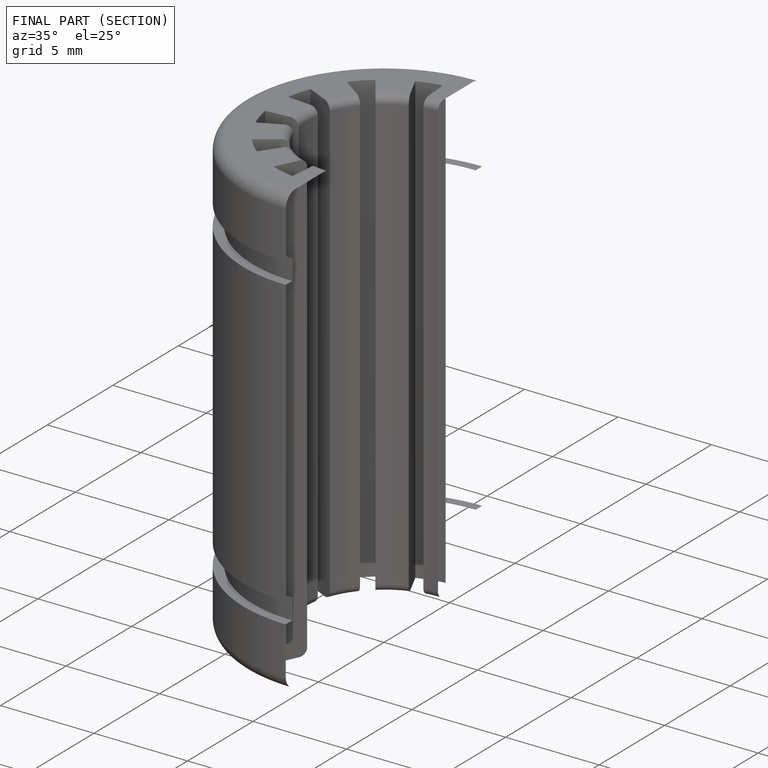
[diagram: finished part — half-section view (interior)]
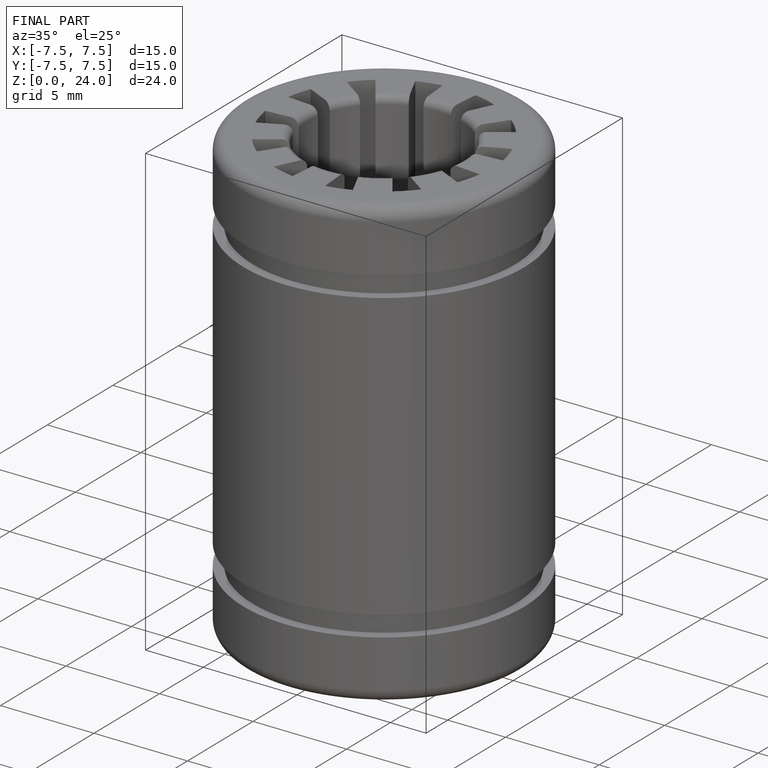
[diagram: finished part — iso view with bounding-box wireframe]
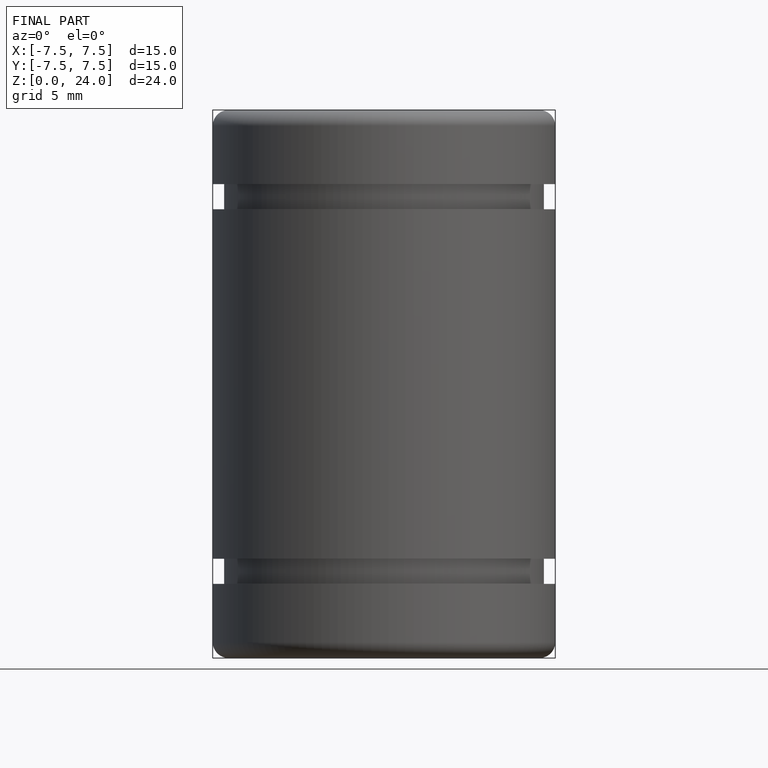
[diagram: finished part — front view with bounding-box wireframe]
